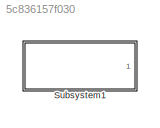
MODEL slx_5c836157f030
KIND model
CONFIG AbsTol = auto
CONFIG EnableMultiTasking = off
CONFIG FixedStep = auto
CONFIG MaxStep = auto
CONFIG MinStep = auto
CONFIG RelTol = 1e-3
CONFIG SampleTimeConstraint = Unconstrained
CONFIG Solver = VariableStepAuto
CONFIG SolverName = VariableStepAuto
CONFIG StartTime = 0.0
CONFIG StopTime = 10.0
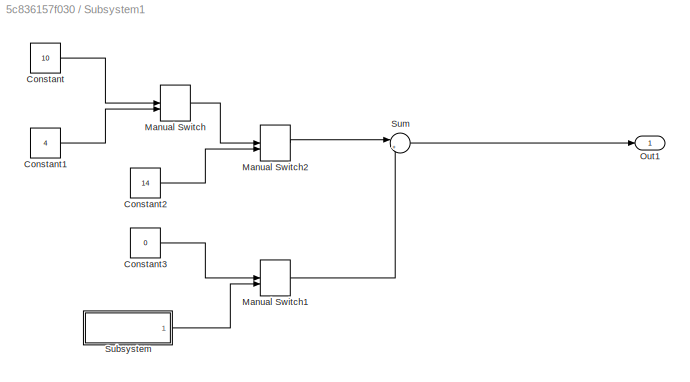
BLOCK [SubSystem] Subsystem1
  Ports = [0, 1]
  RequestExecContextInheritance = off
  ShowPortLabels = SignalName
BLOCK [Constant] Subsystem1/Constant
  Value = 10
BLOCK [Constant] Subsystem1/Constant1
  Value = 4
BLOCK [Constant] Subsystem1/Constant2
  Value = 14
BLOCK [Constant] Subsystem1/Constant3
  Value = 0
BLOCK [ManualSwitch] Subsystem1/Manual Switch
BLOCK [ManualSwitch] Subsystem1/Manual Switch1
BLOCK [ManualSwitch] Subsystem1/Manual Switch2
BLOCK [Outport] Subsystem1/Out1
  IconDisplay = Port number
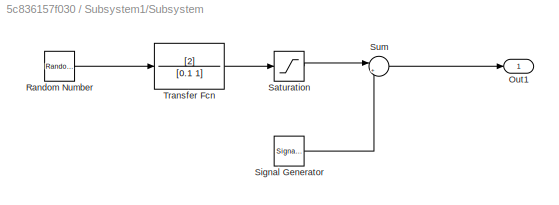
BLOCK [SubSystem] Subsystem1/Subsystem
  Ports = [0, 1]
  RequestExecContextInheritance = off
BLOCK [Outport] Subsystem1/Subsystem/Out1
  IconDisplay = Port number
BLOCK [RandomNumber] Subsystem1/Subsystem/Random Number
  SampleTime = 0.1
BLOCK [Saturate] Subsystem1/Subsystem/Saturation
  InputPortMap = u0
  LowerLimit = -2
  Ports = [1, 1]
  UpperLimit = 3
BLOCK [SignalGenerator] Subsystem1/Subsystem/Signal Generator
  Frequency = 0.05
  Ports = [0, 1]
  Units = rad/sec
BLOCK [Sum] Subsystem1/Subsystem/Sum
  IconShape = round
  InputSameDT = off
  Inputs = |++
  OutDataTypeStr = Inherit: Inherit via internal rule
  Ports = [2, 1]
  SaturateOnIntegerOverflow = off
BLOCK [TransferFcn] Subsystem1/Subsystem/Transfer Fcn
  Denominator = [0.1 1]
  Numerator = [2]
BLOCK [Sum] Subsystem1/Sum
  IconShape = round
  InputSameDT = off
  Inputs = |++
  OutDataTypeStr = Inherit: Inherit via internal rule
  Ports = [2, 1]
  SaturateOnIntegerOverflow = off
LINE Subsystem1/Constant1:1 -> Subsystem1/Manual Switch:2
LINE Subsystem1/Constant2:1 -> Subsystem1/Manual Switch2:2
LINE Subsystem1/Constant3:1 -> Subsystem1/Manual Switch1:1
LINE Subsystem1/Constant:1 -> Subsystem1/Manual Switch:1
LINE Subsystem1/Manual Switch1:1 -> Subsystem1/Sum:2
LINE Subsystem1/Manual Switch2:1 -> Subsystem1/Sum:1
LINE Subsystem1/Manual Switch:1 -> Subsystem1/Manual Switch2:1
LINE Subsystem1/Subsystem/Random Number:1 -> Subsystem1/Subsystem/Transfer Fcn:1
LINE Subsystem1/Subsystem/Saturation:1 -> Subsystem1/Subsystem/Sum:1
LINE Subsystem1/Subsystem/Signal Generator:1 -> Subsystem1/Subsystem/Sum:2
LINE Subsystem1/Subsystem/Sum:1 -> Subsystem1/Subsystem/Out1:1
LINE Subsystem1/Subsystem/Transfer Fcn:1 -> Subsystem1/Subsystem/Saturation:1
LINE Subsystem1/Subsystem:1 -> Subsystem1/Manual Switch1:2
LINE Subsystem1/Sum:1 -> Subsystem1/Out1:1
